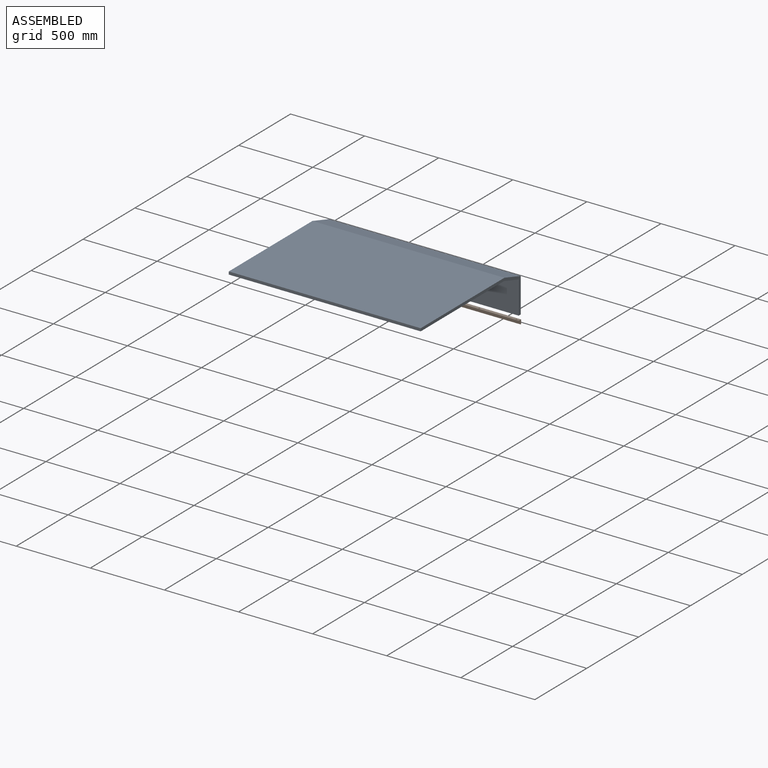
[diagram: assembled view]
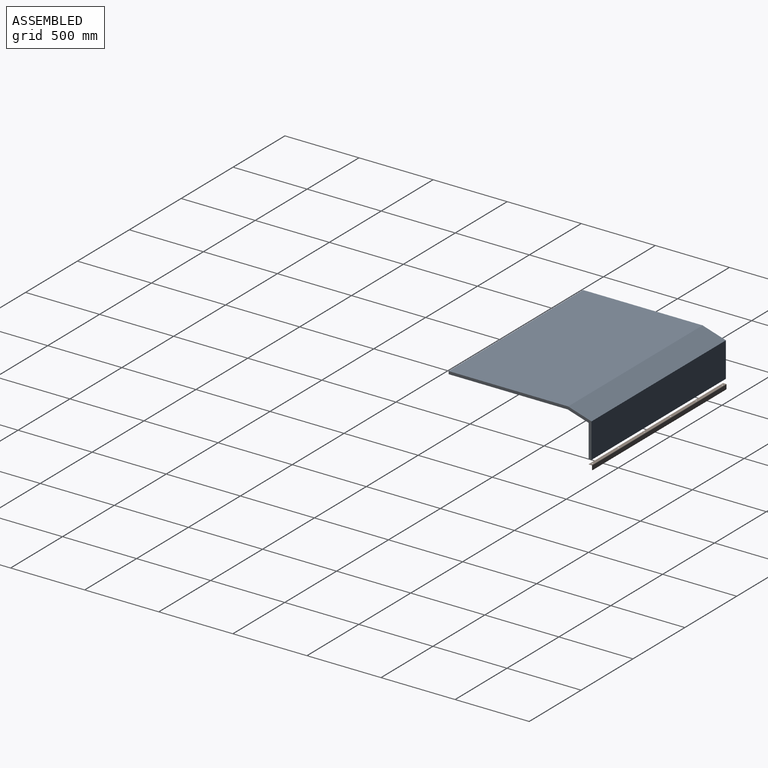
[diagram: assembled view, second angle]
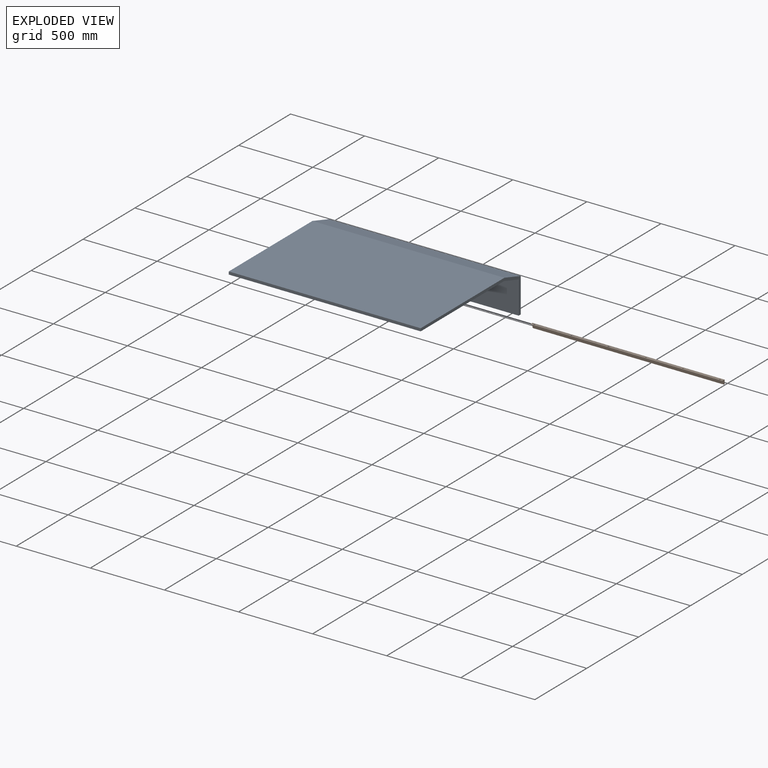
[diagram: exploded view]
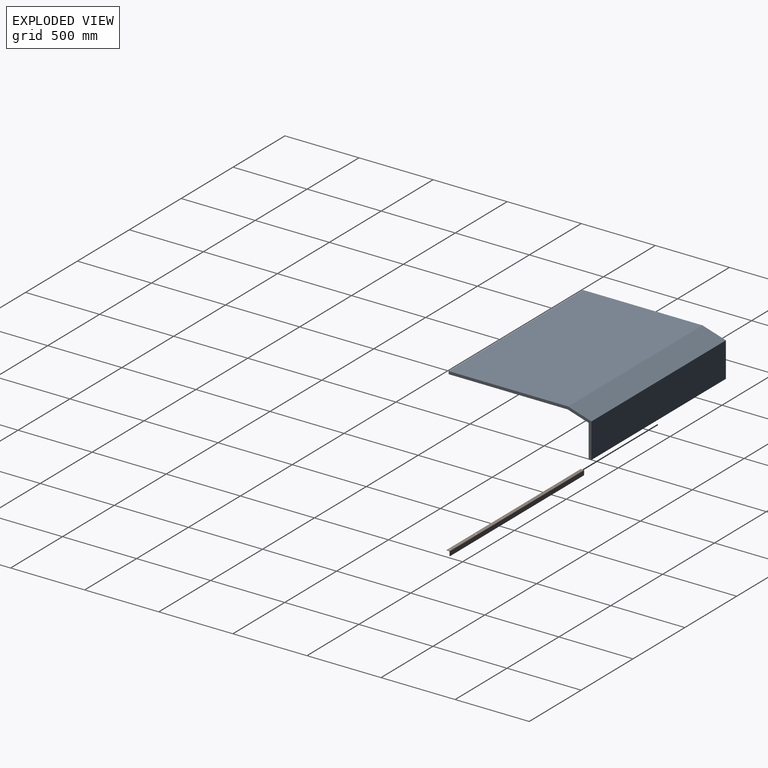
[diagram: exploded view, second angle]
ASSEMBLY  parts=2 mates=2
PART A: 22 faces, bbox 1295.4x964x284.2 mm
  f0: plane 1295.4x806.45mm, normal (0,0,1), area 1044675.3mm2, adj f1,f7,f8,f9
  f1: plane 1295.4x19.05mm, normal (0,-1,0), area 24677.4mm2, adj f0,f2,f8,f9
  f2: plane 1295.4x803.54mm, normal (0,0,-1), area 1040909.5mm2, adj f1,f3,f8,f9
  f3: plane 1295.4x141.44mm, normal (0,-0.3,-0.95), area 191961.8mm2, adj f2,f4,f8,f9
  f4: plane 1295.4x220.94mm, normal (0,-1,0), area 286211.3mm2, adj f3,f5,f8,f9
  f5: plane 1295.4x19.05mm, normal (0,0,-1), area 24206.1mm2, adj f4,f6,f8,f9,f10,f12,f14,f16
  f6: plane 1295.4x234.95mm, normal (0,1,0), area 304354.2mm2, adj f5,f7,f8,f9
  f7: plane 1295.4x157.59mm, normal (0,0.3,0.95), area 213870.5mm2, adj f0,f6,f8,f9
  f8: plane 964.04x284.19mm, normal (1,0,0), area 22661.6mm2, adj f0,f1,f2,f3,f4,f5,f6,f7
  f9: plane 964.04x284.19mm, normal (-1,0,0), area 22661.6mm2, adj f0,f1,f2,f3,f4,f5,f6,f7
  f10: cylinder r=5mm len=12.7mm, axis (0,0,-1), area 399mm2, adj f5,f11
  f11: plane 10x10mm, normal (0,0,-1), area 78.5mm2, adj f10
  f12: cylinder r=5mm len=12.7mm, axis (0,0,-1), area 399mm2, adj f5,f13
  f13: plane 10x10mm, normal (0,0,-1), area 78.5mm2, adj f12
  f14: cylinder r=5mm len=12.7mm, axis (0,0,-1), area 399mm2, adj f5,f15
  f15: plane 10x10mm, normal (0,0,-1), area 78.5mm2, adj f14
  f16: cylinder r=5mm len=12.7mm, axis (0,0,-1), area 399mm2, adj f5,f17
  f17: plane 10x10mm, normal (0,0,-1), area 78.5mm2, adj f16
  f18: cylinder r=5mm len=12.7mm, axis (0,0,-1), area 399mm2, adj f5,f19
  f19: plane 10x10mm, normal (0,0,-1), area 78.5mm2, adj f18
  f20: cylinder r=5mm len=12.7mm, axis (0,0,-1), area 399mm2, adj f5,f21
  f21: plane 10x10mm, normal (0,0,-1), area 78.5mm2, adj f20
PART B: 18 faces, bbox 1295.4x23.4x31.8 mm
  f0: plane 1295.4x20.89mm, normal (0,0,1), area 26583.2mm2, adj f1,f7,f8,f9,f10,f11,f12,f13
  f1: plane 1295.4x1.2mm, normal (0,-1,0), area 1554.5mm2, adj f0,f2,f8,f9
  f2: plane 1295.4x20.19mm, normal (0,0,-1), area 25686.8mm2, adj f1,f3,f8,f9,f10,f11,f12,f13
  f3: cylinder r=2.03mm len=1295.4mm, axis (-1,0,0), area 4134.7mm2, adj f2,f4,f8,f9
  f4: plane 1295.4x28.52mm, normal (0,-1,0), area 36931.1mm2, adj f3,f5,f8,f9,f16,f17
  f5: plane 1285.24x1.2mm, normal (0,0,-1), area 1542.3mm2, adj f4,f6,f16,f17
  f6: plane 1295.4x29.21mm, normal (0,1,0), area 37827.6mm2, adj f5,f7,f8,f9,f16,f17
  f7: cylinder r=2.54mm len=1295.4mm, axis (-1,0,0), area 5168.4mm2, adj f0,f6,f8,f9
  f8: plane 26.67x23.43mm, normal (1,0,0), area 58.2mm2, adj f0,f1,f2,f3,f4,f6,f7,f17
  f9: plane 26.67x23.43mm, normal (-1,0,0), area 58.2mm2, adj f0,f1,f2,f3,f4,f6,f7,f16
  f10: cylinder r=5mm len=10mm, axis (0,0,1), area 37.7mm2, adj f0,f2
  f11: cylinder r=5mm len=10mm, axis (0,0,1), area 37.7mm2, adj f0,f2
  f12: cylinder r=5mm len=10mm, axis (0,0,1), area 37.7mm2, adj f0,f2
  f13: cylinder r=5mm len=10mm, axis (0,0,1), area 37.7mm2, adj f0,f2
  f14: cylinder r=5mm len=10mm, axis (0,0,1), area 37.7mm2, adj f0,f2
  f15: cylinder r=5mm len=10mm, axis (0,0,1), area 37.7mm2, adj f0,f2
  f16: cylinder r=5.08mm len=5.08mm, axis (0,1,0), area 9.6mm2, adj f4,f5,f6,f9
  f17: cylinder r=5.08mm len=5.08mm, axis (0,-1,0), area 9.6mm2, adj f4,f5,f6,f8
PLACE A t=(-641.04,471.88,-353.39)mm
PLACE B t=(-641.04,931.11,-498.07)mm
MATE planar A.f8 <-> B.f8  axis (1,0,0) through (654.36,535.05,-194.56)mm
MATE planar B.f1 <-> A.f4  axis (0,-1,0) through (6.66,908.89,-466.92)mm
